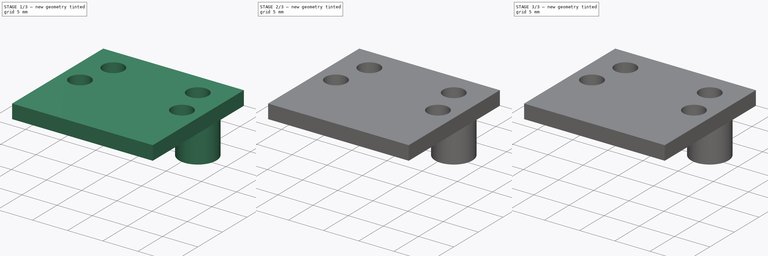
[diagram: build sequence overview — one tinted view per stage of 3, left to right]
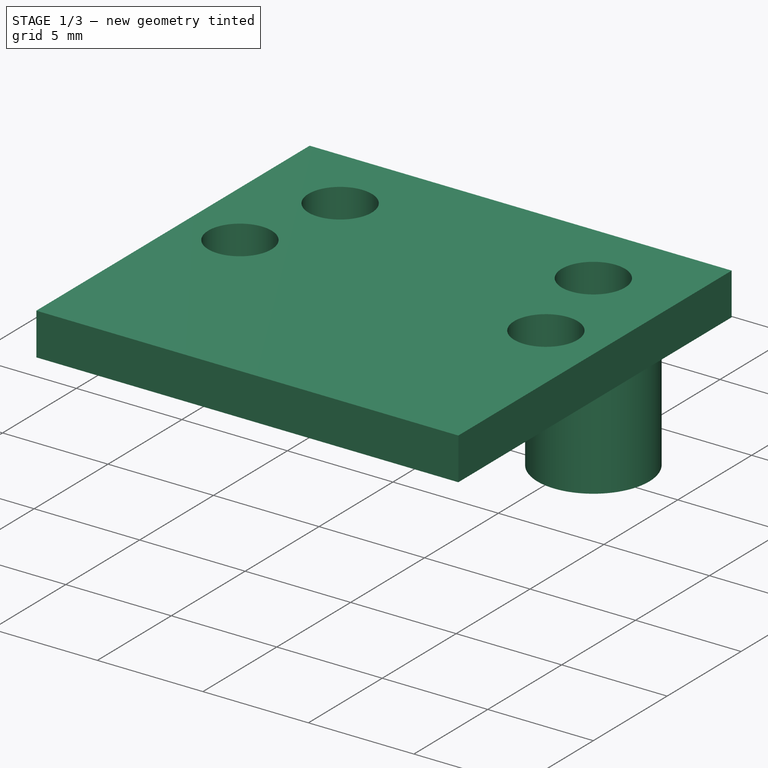
[diagram: stage 1 of 3 — iso view after this stage's code; geometry added in this stage tinted green]
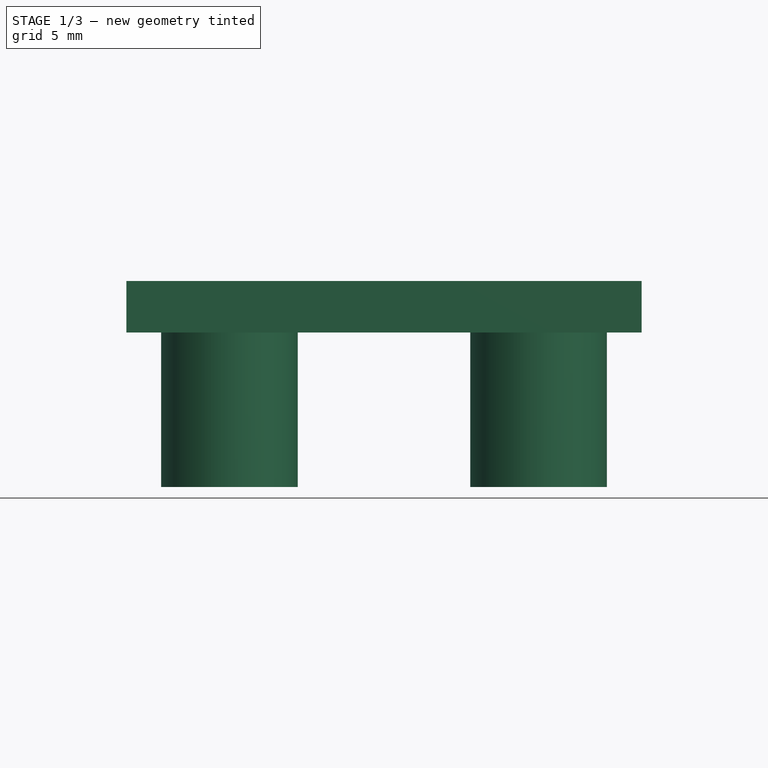
[diagram: stage 1 of 3 — front view after this stage's code; geometry added in this stage tinted green]
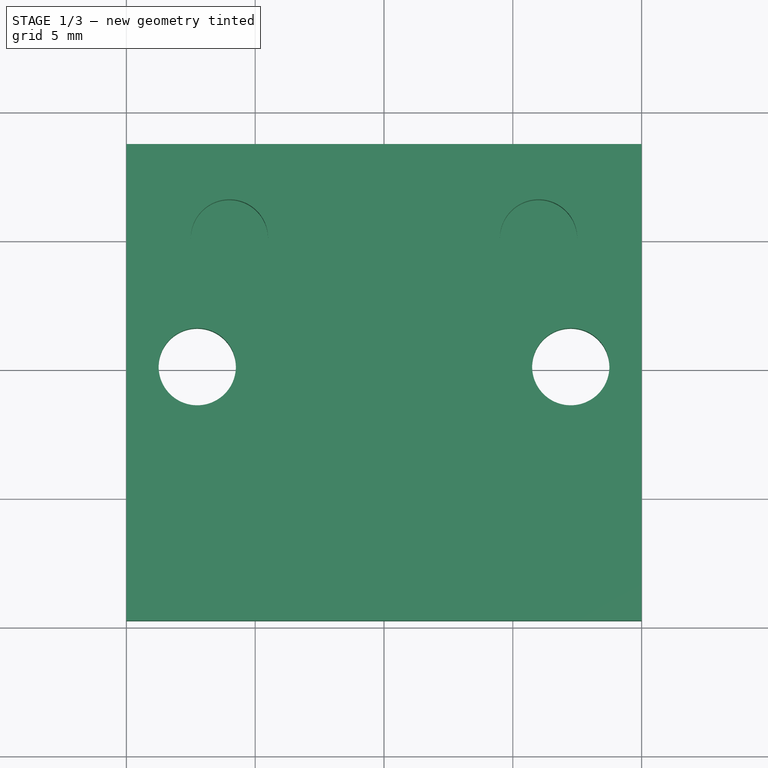
[diagram: stage 1 of 3 — top view after this stage's code; geometry added in this stage tinted green]
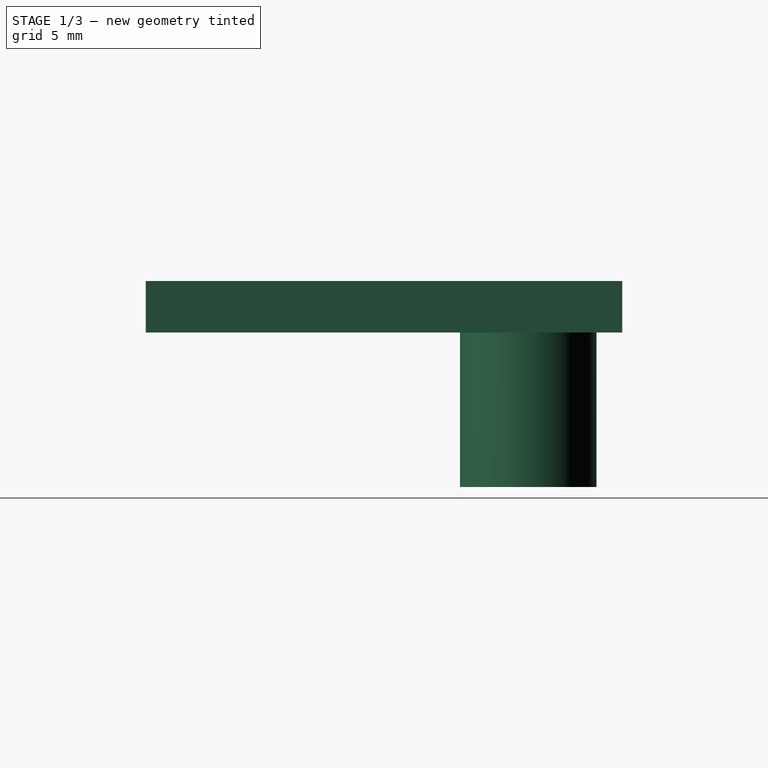
[diagram: stage 1 of 3 — right view after this stage's code; geometry added in this stage tinted green]
FCSTD DOCUMENT  (FreeCAD 1.0R38641 +468 (Git))
Label: Support ADXL345
License: All rights reserved
LicenseURL: https://en.wikipedia.org/wiki/All_rights_reserved
objects: PartDesign::Pad×3, Sketcher::SketchObject×2, PartDesign::Fillet×2, PartDesign::Hole×1, PartDesign::Body×1
note: 23 computed .brp shape members not serialized (recipe doc carries the construction recipe); baked Part::Feature solids carry a one-line shape summary decoded from their .brp

FEATURE [Sketcher::SketchObject] Sketch
  ArcFitTolerance = 1e-06
  AttachmentSupport = -> [XY_Plane]
  FullyConstrained = true
  MakeInternals = false
  MapMode = 5
  sketch-geometry (16):
    g0: Circle CenterX=-6 CenterY=0 CenterZ=0 NormalX=0 NormalY=0 NormalZ=1 AngleXU=0 Radius=1.5
    g1: Circle CenterX=6 CenterY=0 CenterZ=0 NormalX=0 NormalY=0 NormalZ=1 AngleXU=0 Radius=1.5
    g2: LineSegment [constr] StartX=6 StartY=0 StartZ=0 EndX=0 EndY=0 EndZ=0
    g3: LineSegment [constr] StartX=-6 StartY=0 StartZ=0 EndX=0 EndY=0 EndZ=0
    g4: Circle CenterX=6 CenterY=0 CenterZ=0 NormalX=0 NormalY=0 NormalZ=1 AngleXU=0 Radius=2.65
    g5: Circle CenterX=-6 CenterY=0 CenterZ=0 NormalX=0 NormalY=0 NormalZ=1 AngleXU=0 Radius=2.65
    g6: LineSegment StartX=0 StartY=3.65 StartZ=0 EndX=10 EndY=3.65 EndZ=0
    g7: LineSegment StartX=10 StartY=3.65 StartZ=0 EndX=10 EndY=-14.85 EndZ=0
    g8: LineSegment StartX=10 StartY=-14.85 StartZ=0 EndX=0 EndY=-14.85 EndZ=0
    g9: Circle CenterX=7.25 CenterY=-4.996 CenterZ=0 NormalX=0 NormalY=0 NormalZ=1 AngleXU=0 Radius=1.5
    g10: LineSegment [constr] StartX=7.25 StartY=-4.996 StartZ=0 EndX=0 EndY=-4.996 EndZ=0
    g11: LineSegment [constr] StartX=0 StartY=-4.996 StartZ=0 EndX=-7.25 EndY=-4.996 EndZ=0
    g12: Circle CenterX=-7.25 CenterY=-4.996 CenterZ=0 NormalX=0 NormalY=0 NormalZ=1 AngleXU=0 Radius=1.5
    g13: LineSegment StartX=0 StartY=3.65 StartZ=0 EndX=-10 EndY=3.65 EndZ=0
    g14: LineSegment StartX=-10 StartY=3.65 StartZ=0 EndX=-10 EndY=-14.85 EndZ=0
    g15: LineSegment StartX=-10 StartY=-14.85 StartZ=0 EndX=0 EndY=-14.85 EndZ=0
  constraints (43):
    c: PointOnObject(g0,g-1)
    c: Diameter(g1) = 3
    c: PointOnObject(g1,g-1)
    c: Equal(g0,g1)
    c: Coincident(g2,g1)
    c: Coincident(g2,g-1)
    c: DistanceX(g2,g2) = 6
    c: Coincident(g3,g0)
    c: Coincident(g3,g2)
    c: Equal(g3,g2)
    c: Diameter(g4) = 5.3
    c: Coincident(g4,g1)
    c: Coincident(g5,g0)
    c: Equal(g5,g4)
    c: Horizontal(g6)
    c: PointOnObject(g6,g-2)
    c: Coincident(g7,g6)
    c: Coincident(g8,g7)
    c: PointOnObject(g8,g-2)
    c: Horizontal(g8)
    c: Vertical(g7)
    c: DistanceX(g6,g6) = 10
    c: DistanceY(g7,g7) = 18.5
    c: Diameter(g9) = 3
    c: Coincident(g10,g9)
    c: PointOnObject(g10,g-2)
    c: Horizontal(g10)
    c: Coincident(g11,g10)
    c: Horizontal(g11)
    c: DistanceX(g10,g10) = 7.25
    c: Equal(g11,g10)
    c: Coincident(g12,g11)
    c: Equal(g12,g9)
    c: Coincident(g6,g13)
    c: Horizontal(g13)
    c: Coincident(g14,g13)
    c: Coincident(g15,g14)
    c: Coincident(g15,g8)
    c: Horizontal(g15)
    c: Vertical(g14)
    c: Equal(g13,g6)
    c: Distance(g4,g9) = 1
    c: Distance(g4,g6) = 1
FEATURE [PartDesign::Pad] Pad
  Direction = (0,0,1)
  Length = 2
  Length2 = 10
  Profile = -> Sketch [Edge6,Edge5,Edge10,Edge1,Edge12,Edge11,Edge2,Edge7,Edge8,Edge9]
  ReferenceAxis = -> Sketch [N_Axis]
  Refine = true
  Suppressed = false
  Type = 0
FEATURE [PartDesign::Pad] Pad001
  BaseFeature = -> Pad
  Direction = (0,0,1)
  Length = 6
  Length2 = 10
  Profile = -> Sketch [Edge3,Edge4]
  ReferenceAxis = -> Sketch [N_Axis]
  Refine = true
  Reversed = true
  Suppressed = false
  Type = 0
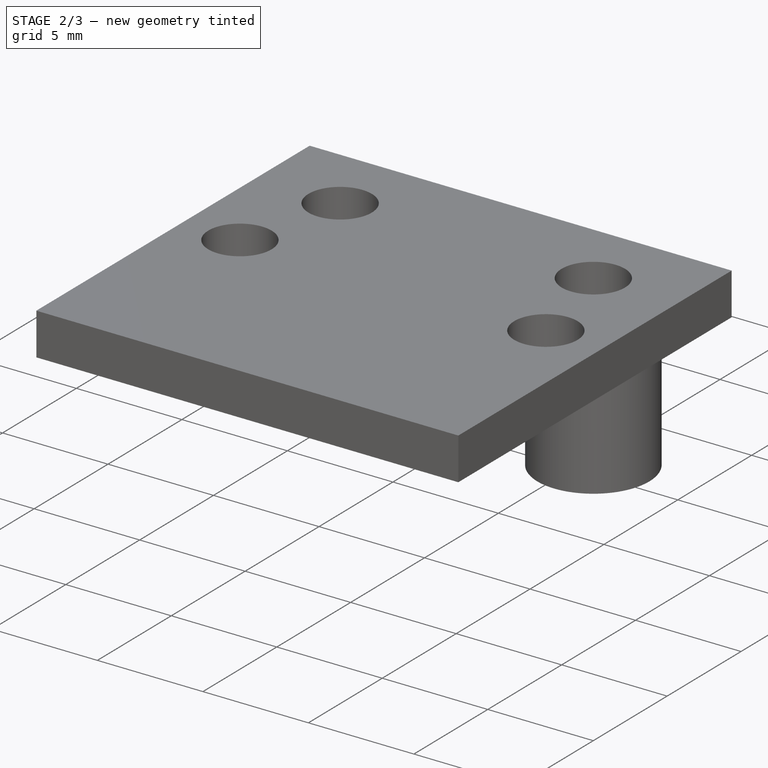
[diagram: stage 2 of 3 — iso view after this stage's code; geometry added in this stage tinted green]
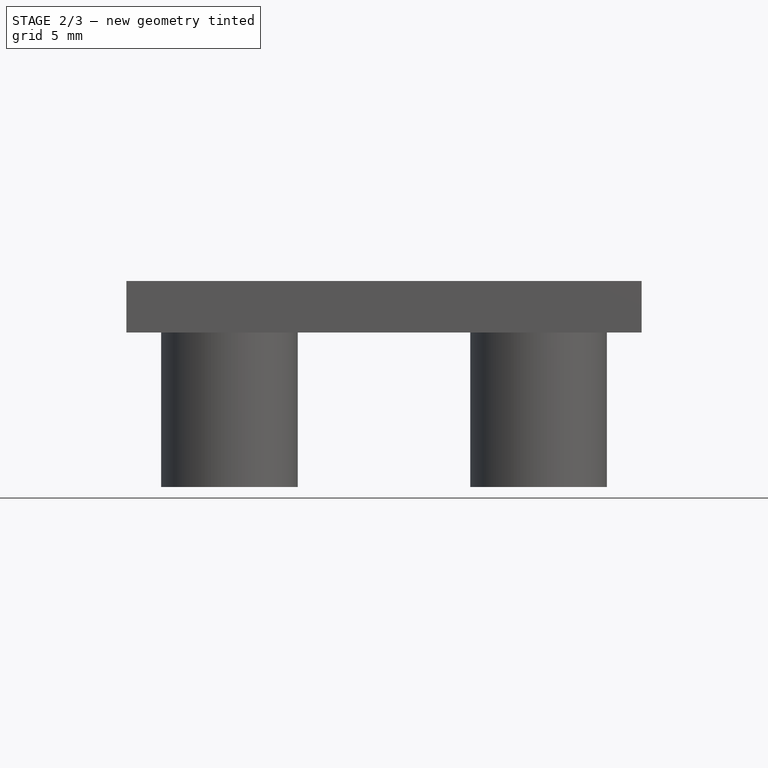
[diagram: stage 2 of 3 — front view after this stage's code; geometry added in this stage tinted green]
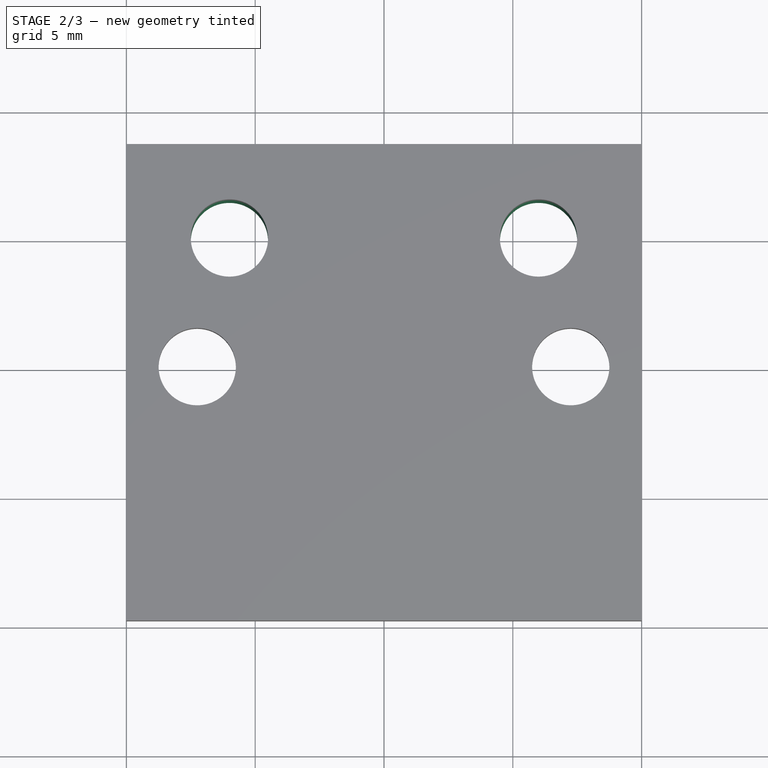
[diagram: stage 2 of 3 — top view after this stage's code; geometry added in this stage tinted green]
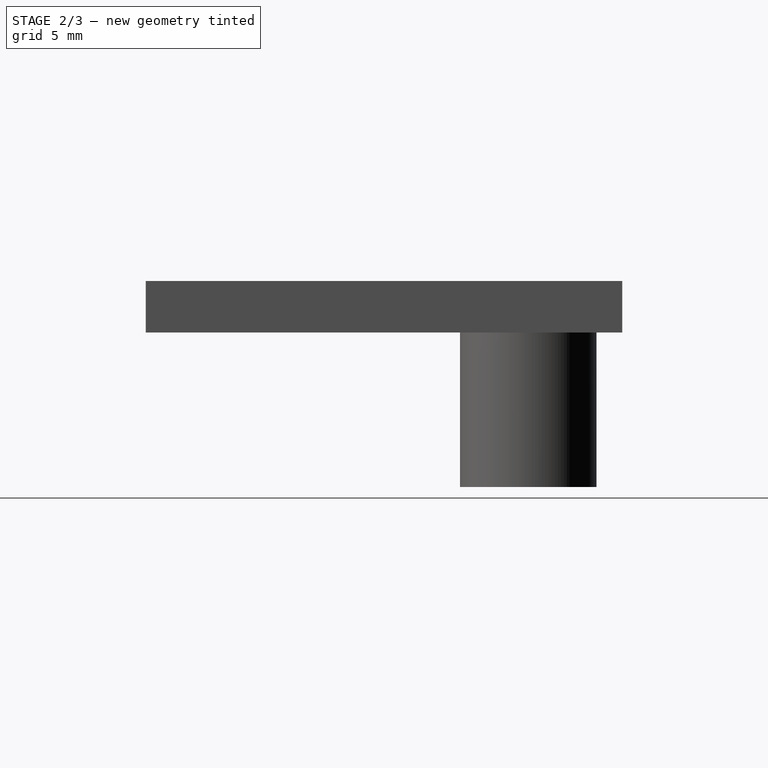
[diagram: stage 2 of 3 — right view after this stage's code; geometry added in this stage tinted green]
FEATURE [PartDesign::Hole] Hole
  BaseFeature = -> Pad001
  CustomThreadClearance = 0
  Depth = 25
  DepthType = 0
  Diameter = 3
  DrillForDepth = false
  DrillPoint = 1
  DrillPointAngle = 118
  HoleCutCountersinkAngle = 90
  HoleCutCustomValues = false
  HoleCutDepth = 0
  HoleCutDiameter = 6.1
  HoleCutType = 0
  ModelThread = false
  Profile = -> Pad001 [Edge30,Edge28]
  Refine = true
  Suppressed = false
  Tapered = false
  TaperedAngle = 90
  ThreadClass = 0
  ThreadDepth = 25
  ThreadDepthType = 0
  ThreadDirection = 0
  ThreadFit = 0
  ThreadSize = 0
  ThreadType = 0
  Threaded = false
  UseCustomThreadClearance = false
FEATURE [PartDesign::Fillet] Fillet
  Base = -> Hole [Edge14,Edge15,Edge6,Edge9,Edge1,Edge2]
  BaseFeature = -> Hole
  Radius = 0.5
  Refine = true
  SupportTransform = false
  Suppressed = true
  UseAllEdges = false
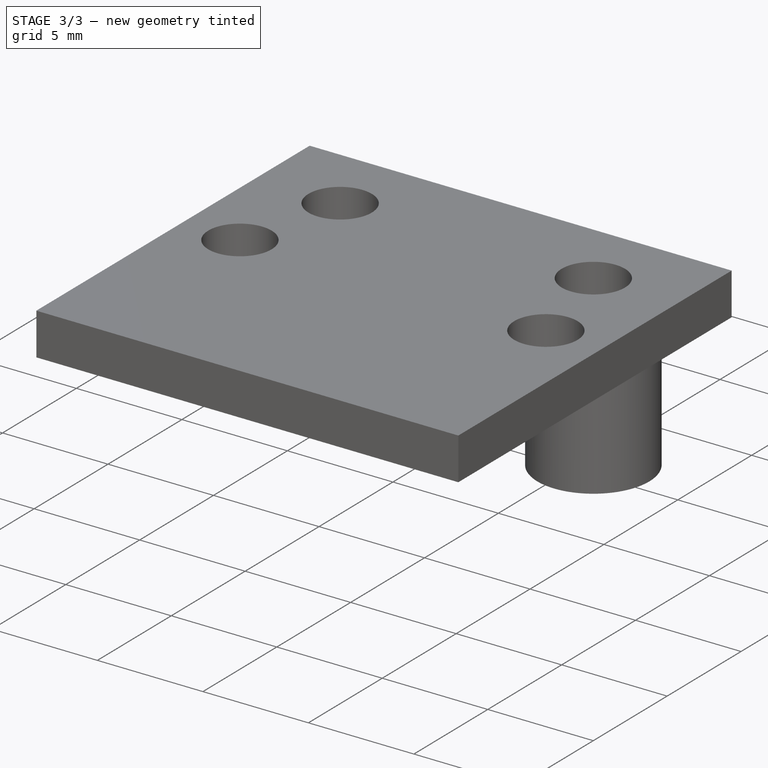
[diagram: stage 3 of 3 — iso view after this stage's code; geometry added in this stage tinted green]
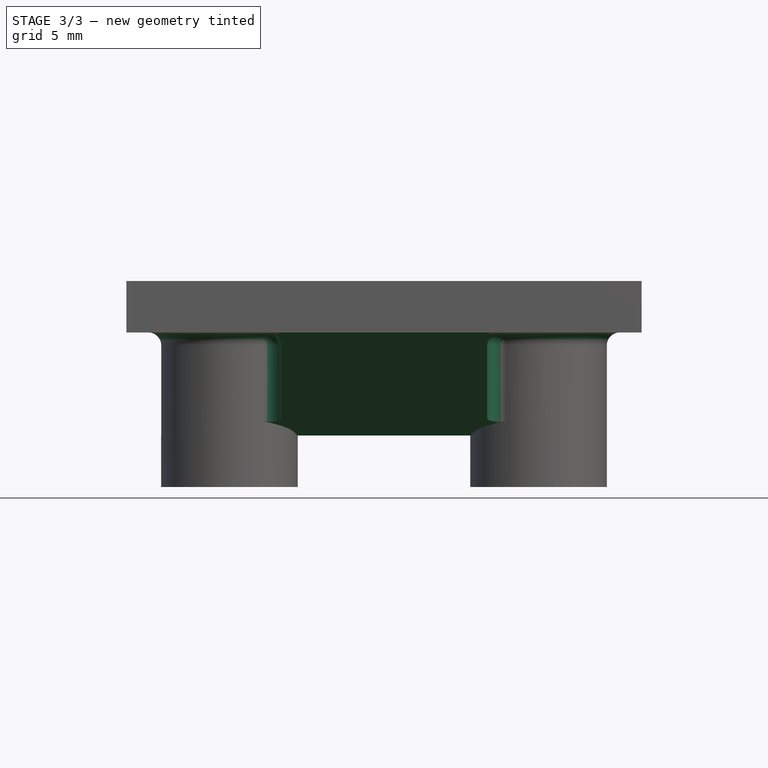
[diagram: stage 3 of 3 — front view after this stage's code; geometry added in this stage tinted green]
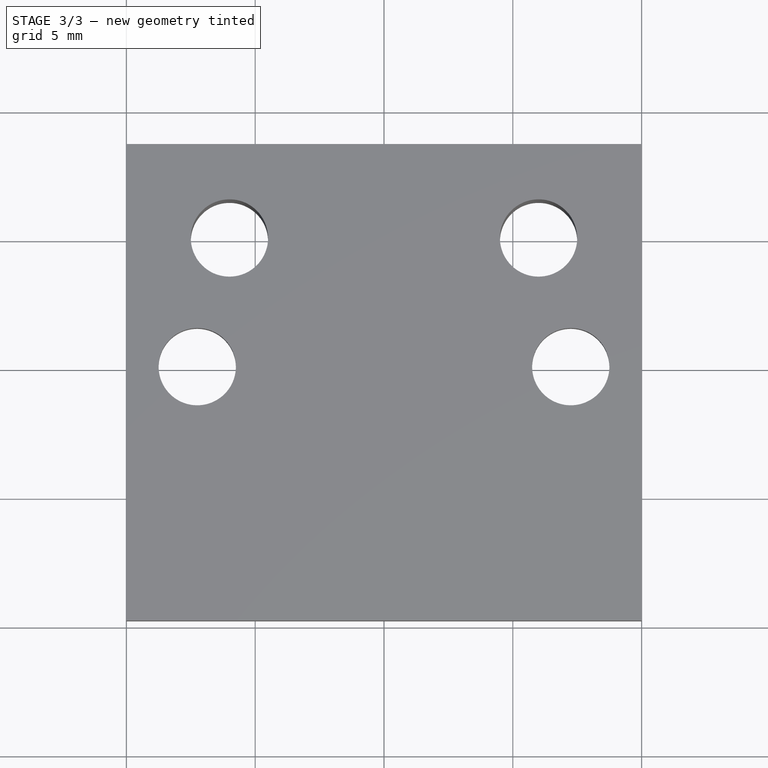
[diagram: stage 3 of 3 — top view after this stage's code; geometry added in this stage tinted green]
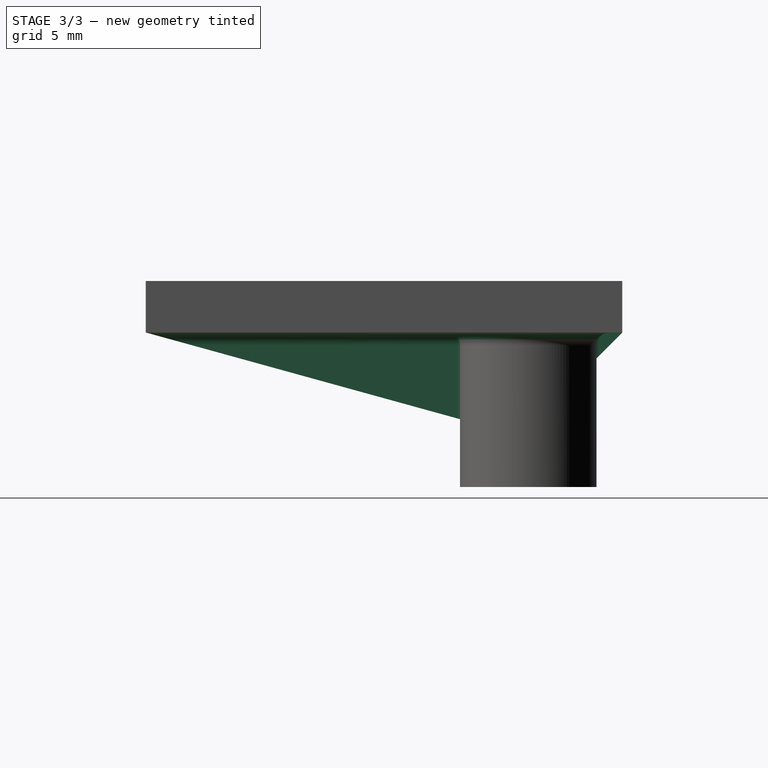
[diagram: stage 3 of 3 — right view after this stage's code; geometry added in this stage tinted green]
FEATURE [Sketcher::SketchObject] Sketch001
  ArcFitTolerance = 1e-06
  AttachmentSupport = -> [YZ_Plane]
  FullyConstrained = true
  MakeInternals = false
  MapMode = 5
  Placement = pos=(0,0,0) rot=(0.57735,0.57735,0.57735;2.0944rad)
  sketch-geometry (3):
    g0: LineSegment StartX=3.65 StartY=0 StartZ=0 EndX=-0.35 EndY=-4 EndZ=0
    g1: LineSegment StartX=-14.85 StartY=0 StartZ=0 EndX=-0.35 EndY=-4 EndZ=0
    g2: LineSegment StartX=-14.85 StartY=0 StartZ=0 EndX=3.65 EndY=0 EndZ=0
  constraints (7):
    c: Coincident(g0,g-3)
    c: Angle(g-1,g0) = 0.785398
    c: Distance(g0,g-1) = 4
    c: Coincident(g1,g-4)
    c: Coincident(g1,g0)
    c: Coincident(g2,g1)
    c: Coincident(g2,g0)
FEATURE [PartDesign::Pad] Pad002
  BaseFeature = -> Fillet
  Direction = (1,0,0)
  Length = 8
  Length2 = 10
  Midplane = true
  Profile = -> Sketch001
  ReferenceAxis = -> Sketch001 [N_Axis]
  Refine = true
  Suppressed = false
  Type = 0
FEATURE [PartDesign::Fillet] Fillet001
  Base = -> Pad002 [Edge15,Edge33,Edge47,Edge40,Edge46,Edge17,Edge16,Edge32,Edge41]
  BaseFeature = -> Pad002
  Radius = 0.5
  Refine = true
  SupportTransform = false
  Suppressed = false
  UseAllEdges = false
FEATURE [PartDesign::Body] Body
  AllowCompound = false
  Group = -> [Sketch,Pad,Pad001,Hole,Fillet,Sketch001,Pad002,Fillet001]
  Origin = -> Origin
  Tip = -> Fillet001
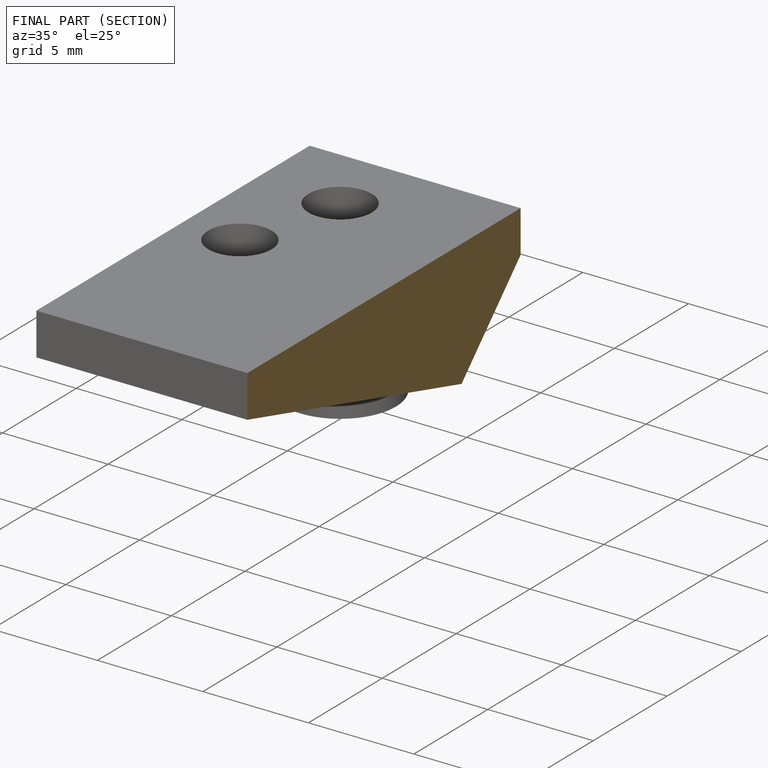
[diagram: finished part — half-section view (interior)]
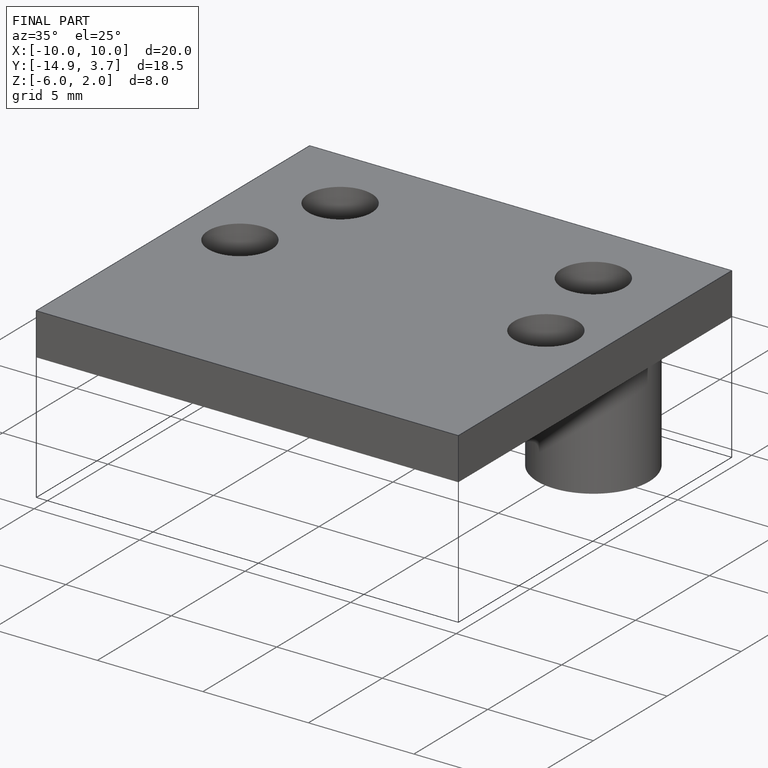
[diagram: finished part — iso view with bounding-box wireframe]
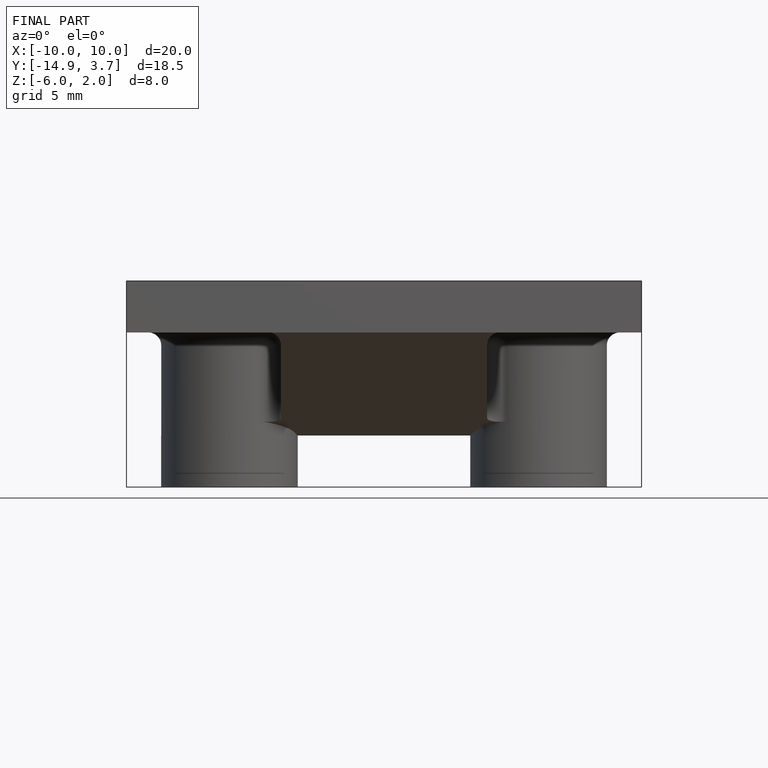
[diagram: finished part — front view with bounding-box wireframe]
